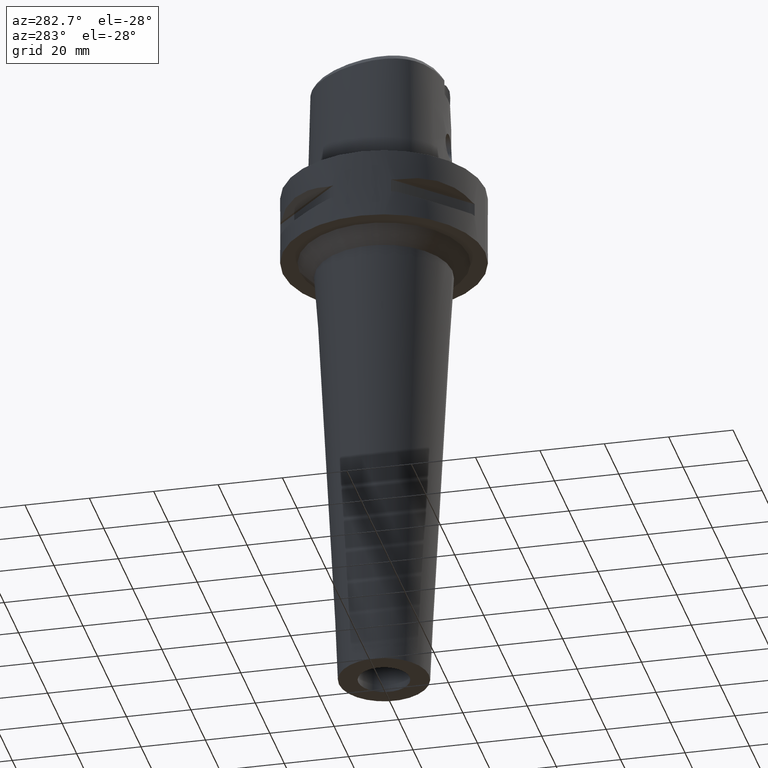
[diagram: clean part render]
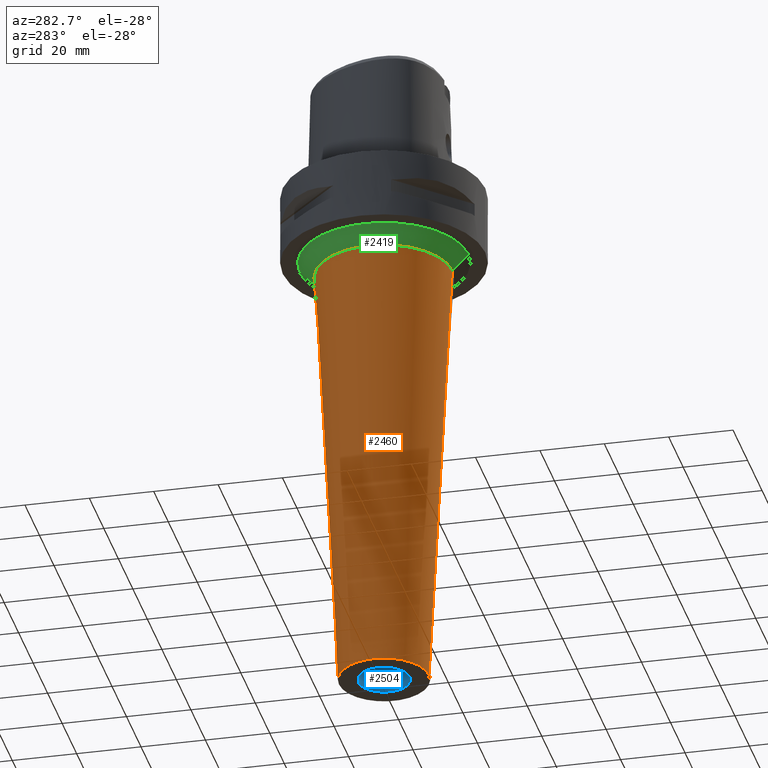
[diagram: same view with three faces highlighted in distinct colors, each labeled with its STEP entity id]
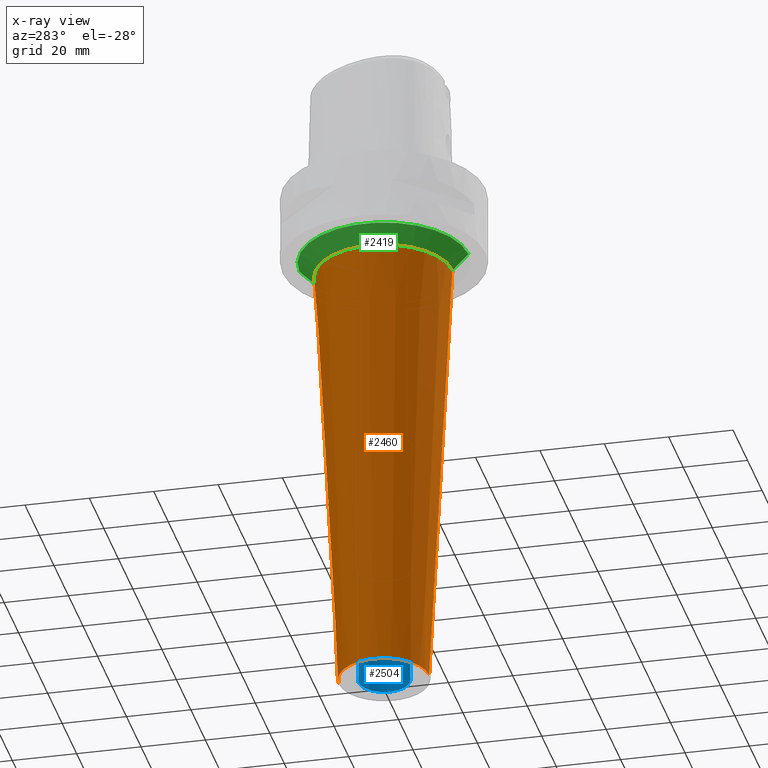
[diagram: x-ray of the same camera — body ghosted, the three highlighted faces saturated]
A machine part, auxiliary view with three faces highlighted in distinct colors.
The next image is the same camera in x-ray (body ghosted, the three faces saturated) — at least one of them is partly hidden behind the body in this view.
Their STEP definitions:

[orange] entity #2460 — the highlighted conical surface has half-angle 3 deg.
#524=CARTESIAN_POINT('',(0.E0,0.E0,-2.7E1));
#525=DIRECTION('',(0.E0,0.E0,-1.E0));
#526=DIRECTION('',(0.E0,-1.E0,0.E0));
#527=AXIS2_PLACEMENT_3D('',#524,#525,#526);
#539=DIRECTION('',(0.E0,-5.233595624294E-2,-9.986295347546E-1));
#540=VECTOR('',#539,1.381893837477E2);
#541=CARTESIAN_POINT('',(0.E0,2.123227354106E1,-2.7E1));
#542=LINE('',#541,#540);
#554=DIRECTION('',(0.E0,5.233595624294E-2,-9.986295347546E-1));
#555=VECTOR('',#554,1.381893837477E2);
#556=CARTESIAN_POINT('',(0.E0,-2.123227354106E1,-2.7E1));
#557=LINE('',#556,#555);
#569=CARTESIAN_POINT('',(0.E0,0.E0,-1.65E2));
#570=DIRECTION('',(0.E0,0.E0,1.E0));
#571=DIRECTION('',(0.E0,1.E0,0.E0));
#572=AXIS2_PLACEMENT_3D('',#569,#570,#571);
#1522=CARTESIAN_POINT('',(0.E0,2.123227354106E1,-2.7E1));
#1523=VERTEX_POINT('',#1522);
#1524=CARTESIAN_POINT('',(0.E0,-2.123227354106E1,-2.7E1));
#1525=VERTEX_POINT('',#1524);
#1526=CARTESIAN_POINT('',(0.E0,1.4E1,-1.65E2));
#1527=VERTEX_POINT('',#1526);
#1528=CARTESIAN_POINT('',(0.E0,-1.4E1,-1.65E2));
#1529=VERTEX_POINT('',#1528);
#2448=CARTESIAN_POINT('',(0.E0,0.E0,-9.6E1));
#2449=DIRECTION('',(0.E0,0.E0,1.E0));
#2450=DIRECTION('',(0.E0,1.E0,0.E0));
#2451=AXIS2_PLACEMENT_3D('',#2448,#2449,#2450);
#2452=CONICAL_SURFACE('',#2451,1.761613677053E1,3.E0);
#2453=ORIENTED_EDGE('',*,*,#2438,.F.);
#2454=ORIENTED_EDGE('',*,*,#2415,.F.);
#2455=ORIENTED_EDGE('',*,*,#2442,.T.);
#2457=ORIENTED_EDGE('',*,*,#2456,.F.);
#2458=EDGE_LOOP('',(#2453,#2454,#2455,#2457));
#2459=FACE_OUTER_BOUND('',#2458,.F.);
#528=CIRCLE('',#527,2.123227354106E1);
#573=CIRCLE('',#572,1.4E1);
#2415=EDGE_CURVE('',#1525,#1523,#528,.T.);
#2438=EDGE_CURVE('',#1523,#1527,#542,.T.);
#2442=EDGE_CURVE('',#1525,#1529,#557,.T.);
#2456=EDGE_CURVE('',#1527,#1529,#573,.T.);
#2460=ADVANCED_FACE('',(#2459),#2452,.T.);

[blue] entity #2504 — the highlighted cylindrical surface (edge-blend (fillet) strip) has radius 8 mm, axis along (0, 0, -1).
#585=CARTESIAN_POINT('',(0.E0,1.325680160077E-14,-1.65E2));
#586=DIRECTION('',(0.E0,0.E0,-1.E0));
#587=DIRECTION('',(0.E0,1.E0,0.E0));
#588=AXIS2_PLACEMENT_3D('',#585,#586,#587);
#593=DIRECTION('',(0.E0,0.E0,1.E0));
#594=VECTOR('',#593,3.8E1);
#595=CARTESIAN_POINT('',(0.E0,-8.E0,-1.65E2));
#596=LINE('',#595,#594);
#600=DIRECTION('',(0.E0,0.E0,1.E0));
#601=VECTOR('',#600,3.8E1);
#602=CARTESIAN_POINT('',(0.E0,8.E0,-1.65E2));
#603=LINE('',#602,#601);
#623=CARTESIAN_POINT('',(0.E0,1.325680160077E-14,-1.27E2));
#624=DIRECTION('',(0.E0,0.E0,1.E0));
#625=DIRECTION('',(0.E0,-1.E0,0.E0));
#626=AXIS2_PLACEMENT_3D('',#623,#624,#625);
#1530=CARTESIAN_POINT('',(0.E0,-8.E0,-1.65E2));
#1531=CARTESIAN_POINT('',(0.E0,8.E0,-1.65E2));
#1532=VERTEX_POINT('',#1530);
#1533=VERTEX_POINT('',#1531);
#1534=CARTESIAN_POINT('',(0.E0,8.E0,-1.27E2));
#1535=VERTEX_POINT('',#1534);
#1536=CARTESIAN_POINT('',(0.E0,-8.E0,-1.27E2));
#1537=VERTEX_POINT('',#1536);
#2492=CARTESIAN_POINT('',(0.E0,1.325680160077E-14,8.25E0));
#2493=DIRECTION('',(0.E0,0.E0,-1.E0));
#2494=DIRECTION('',(0.E0,-1.E0,0.E0));
#2495=AXIS2_PLACEMENT_3D('',#2492,#2493,#2494);
#2496=CYLINDRICAL_SURFACE('',#2495,8.E0);
#2497=ORIENTED_EDGE('',*,*,#2482,.T.);
#2499=ORIENTED_EDGE('',*,*,#2498,.F.);
#2500=ORIENTED_EDGE('',*,*,#2485,.F.);
#2501=ORIENTED_EDGE('',*,*,#2472,.F.);
#2502=EDGE_LOOP('',(#2497,#2499,#2500,#2501));
#2503=FACE_OUTER_BOUND('',#2502,.F.);
#589=CIRCLE('',#588,8.E0);
#627=CIRCLE('',#626,8.E0);
#2472=EDGE_CURVE('',#1533,#1532,#589,.T.);
#2482=EDGE_CURVE('',#1533,#1535,#603,.T.);
#2485=EDGE_CURVE('',#1532,#1537,#596,.T.);
#2498=EDGE_CURVE('',#1537,#1535,#627,.T.);
#2504=ADVANCED_FACE('',(#2503),#2496,.F.);

[green] entity #2419 — the highlighted conical surface has half-angle 45 deg.
#501=CARTESIAN_POINT('',(0.E0,0.E0,-2.2E1));
#502=DIRECTION('',(0.E0,0.E0,-1.E0));
#503=DIRECTION('',(0.E0,-1.E0,0.E0));
#504=AXIS2_PLACEMENT_3D('',#501,#502,#503);
#517=DIRECTION('',(0.E0,7.071067811865E-1,-7.071067811866E-1));
#518=VECTOR('',#517,7.071067811866E0);
#519=CARTESIAN_POINT('',(0.E0,-2.623227354106E1,-2.2E1));
#520=LINE('',#519,#518);
#524=CARTESIAN_POINT('',(0.E0,0.E0,-2.7E1));
#525=DIRECTION('',(0.E0,0.E0,-1.E0));
#526=DIRECTION('',(0.E0,-1.E0,0.E0));
#527=AXIS2_PLACEMENT_3D('',#524,#525,#526);
#532=DIRECTION('',(0.E0,-7.071067811865E-1,-7.071067811866E-1));
#533=VECTOR('',#532,7.071067811866E0);
#534=CARTESIAN_POINT('',(0.E0,2.623227354106E1,-2.2E1));
#535=LINE('',#534,#533);
#1518=CARTESIAN_POINT('',(0.E0,-2.623227354106E1,-2.2E1));
#1519=CARTESIAN_POINT('',(0.E0,2.623227354106E1,-2.2E1));
#1520=VERTEX_POINT('',#1518);
#1521=VERTEX_POINT('',#1519);
#1522=CARTESIAN_POINT('',(0.E0,2.123227354106E1,-2.7E1));
#1523=VERTEX_POINT('',#1522);
#1524=CARTESIAN_POINT('',(0.E0,-2.123227354106E1,-2.7E1));
#1525=VERTEX_POINT('',#1524);
#2405=CARTESIAN_POINT('',(0.E0,0.E0,-2.45E1));
#2406=DIRECTION('',(0.E0,0.E0,1.E0));
#2407=DIRECTION('',(0.E0,1.E0,0.E0));
#2408=AXIS2_PLACEMENT_3D('',#2405,#2406,#2407);
#2409=CONICAL_SURFACE('',#2408,2.373227354106E1,4.5E1);
#2411=ORIENTED_EDGE('',*,*,#2410,.F.);
#2412=ORIENTED_EDGE('',*,*,#2398,.F.);
#2414=ORIENTED_EDGE('',*,*,#2413,.T.);
#2416=ORIENTED_EDGE('',*,*,#2415,.T.);
#2417=EDGE_LOOP('',(#2411,#2412,#2414,#2416));
#2418=FACE_OUTER_BOUND('',#2417,.F.);
#505=CIRCLE('',#504,2.623227354106E1);
#528=CIRCLE('',#527,2.123227354106E1);
#2398=EDGE_CURVE('',#1520,#1521,#505,.T.);
#2410=EDGE_CURVE('',#1521,#1523,#535,.T.);
#2413=EDGE_CURVE('',#1520,#1525,#520,.T.);
#2415=EDGE_CURVE('',#1525,#1523,#528,.T.);
#2419=ADVANCED_FACE('',(#2418),#2409,.T.);